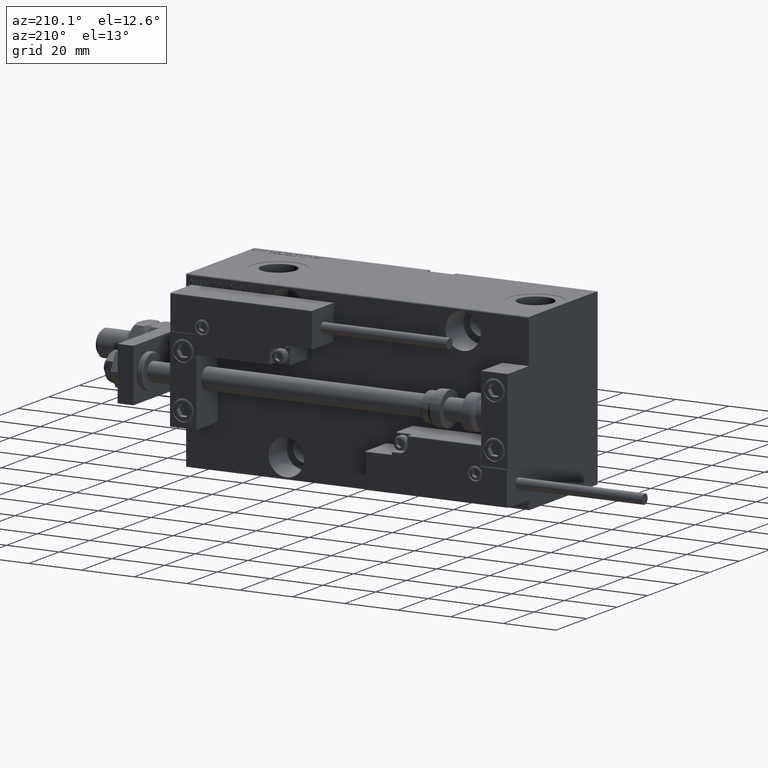
[diagram: clean part render]
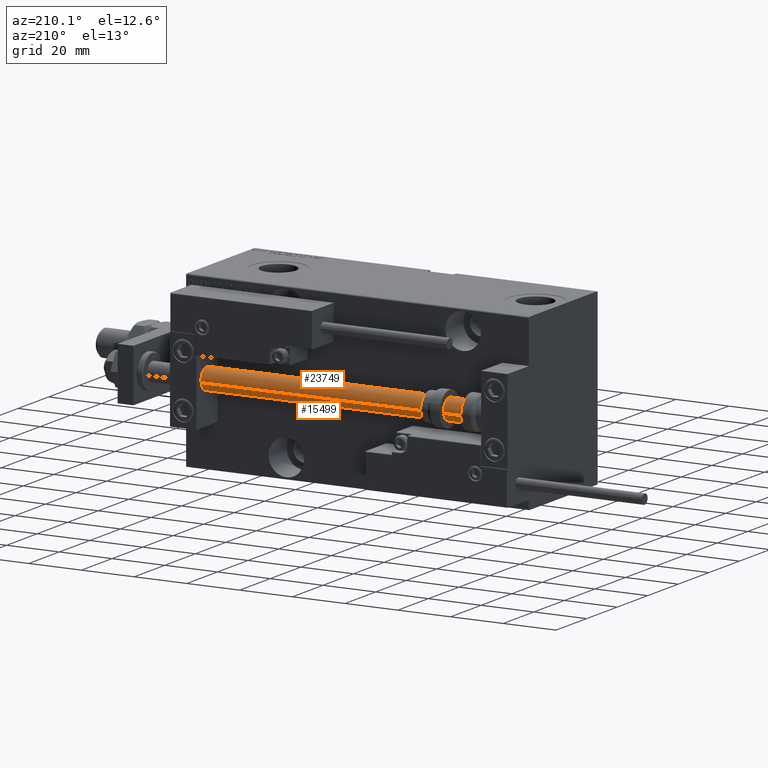
[diagram: same view with one multi-face feature highlighted, each face labeled with its STEP entity id]
A machine part, auxiliary view. The highlighted faces form ONE feature: a constant-radius fillet chain: 2 tangent blend faces with common blend radius 4 mm. The faces share edges in the B-rep.
Their STEP definitions:
[1] entity #23749 (Cylinder):
#70 = VECTOR ( 'NONE', #44994, 1000.000000000000000 ) ;
#1797 = CARTESIAN_POINT ( 'NONE',  ( -4.000000000000000000, 0.000000000000000000, 130.0000000000000000 ) ) ;
#2129 = CYLINDRICAL_SURFACE ( 'NONE', #6515, 4.000000000000000000 ) ;
#2512 = CARTESIAN_POINT ( 'NONE',  ( -4.000000000000000000, 0.000000000000000000, 130.0000000000000000 ) ) ;
#3029 = DIRECTION ( 'NONE',  ( -0.000000000000000000, -0.000000000000000000, 1.000000000000000000 ) ) ;
#6117 = CARTESIAN_POINT ( 'NONE',  ( -4.000000000000000000, 0.000000000000000000, 2.000000000000029310 ) ) ;
#6515 = AXIS2_PLACEMENT_3D ( 'NONE', #22571, #18110, #34068 ) ;
#6838 = EDGE_CURVE ( 'NONE', #8146, #43682, #15181, .T. ) ;
#8146 = VERTEX_POINT ( 'NONE', #2512 ) ;
#10108 = CARTESIAN_POINT ( 'NONE',  ( 0.000000000000000000, 0.000000000000000000, 2.000000000000029310 ) ) ;
#10424 = CARTESIAN_POINT ( 'NONE',  ( 4.000000000000000000, 4.898587196589412829E-16, 2.000000000000029310 ) ) ;
#12213 = EDGE_CURVE ( 'NONE', #43682, #29431, #51371, .T. ) ;
#14385 = VECTOR ( 'NONE', #23639, 1000.000000000000000 ) ;
#15181 = CIRCLE ( 'NONE', #26881, 4.000000000000000000 ) ;
#16016 = ORIENTED_EDGE ( 'NONE', *, *, #12213, .F. ) ;
#17690 = ORIENTED_EDGE ( 'NONE', *, *, #34741, .T. ) ;
#18110 = DIRECTION ( 'NONE',  ( -0.000000000000000000, -0.000000000000000000, -1.000000000000000000 ) ) ;
#18459 = ORIENTED_EDGE ( 'NONE', *, *, #35256, .T. ) ;
#20318 = EDGE_LOOP ( 'NONE', ( #16016, #34625, #17690, #18459 ) ) ;
#20515 = DIRECTION ( 'NONE',  ( 0.000000000000000000, 0.000000000000000000, 1.000000000000000000 ) ) ;
#22060 = FACE_OUTER_BOUND ( 'NONE', #20318, .T. ) ;
#22571 = CARTESIAN_POINT ( 'NONE',  ( 0.000000000000000000, 0.000000000000000000, 130.0000000000000000 ) ) ;
#23639 = DIRECTION ( 'NONE',  ( -0.000000000000000000, -0.000000000000000000, -1.000000000000000000 ) ) ;
#23749 = ADVANCED_FACE ( 'NONE', ( #22060 ), #2129, .T. ) ;
#24187 = CARTESIAN_POINT ( 'NONE',  ( 0.000000000000000000, 0.000000000000000000, 130.0000000000000000 ) ) ;
#26881 = AXIS2_PLACEMENT_3D ( 'NONE', #24187, #20515, #36986 ) ;
#28523 = CIRCLE ( 'NONE', #40244, 4.000000000000000000 ) ;
#29431 = VERTEX_POINT ( 'NONE', #10424 ) ;
#34068 = DIRECTION ( 'NONE',  ( -1.000000000000000000, 0.000000000000000000, 0.000000000000000000 ) ) ;
#34625 = ORIENTED_EDGE ( 'NONE', *, *, #6838, .F. ) ;
#34741 = EDGE_CURVE ( 'NONE', #8146, #46078, #40801, .T. ) ;
#35256 = EDGE_CURVE ( 'NONE', #46078, #29431, #28523, .T. ) ;
#36986 = DIRECTION ( 'NONE',  ( 1.000000000000000000, 0.000000000000000000, 0.000000000000000000 ) ) ;
#37852 = CARTESIAN_POINT ( 'NONE',  ( 4.000000000000000000, 4.898587196589412829E-16, 130.0000000000000000 ) ) ;
#38113 = DIRECTION ( 'NONE',  ( 1.000000000000000000, 0.000000000000000000, 0.000000000000000000 ) ) ;
#40244 = AXIS2_PLACEMENT_3D ( 'NONE', #10108, #3029, #38113 ) ;
#40801 = LINE ( 'NONE', #1797, #70 ) ;
#43682 = VERTEX_POINT ( 'NONE', #46054 ) ;
#44994 = DIRECTION ( 'NONE',  ( -0.000000000000000000, -0.000000000000000000, -1.000000000000000000 ) ) ;
#46054 = CARTESIAN_POINT ( 'NONE',  ( 4.000000000000000000, 4.898587196589412829E-16, 130.0000000000000000 ) ) ;
#46078 = VERTEX_POINT ( 'NONE', #6117 ) ;
#51371 = LINE ( 'NONE', #37852, #14385 ) ;
[2] entity #15499 (Cylinder):
#70 = VECTOR ( 'NONE', #44994, 1000.000000000000000 ) ;
#1699 = DIRECTION ( 'NONE',  ( -0.000000000000000000, -0.000000000000000000, 1.000000000000000000 ) ) ;
#1797 = CARTESIAN_POINT ( 'NONE',  ( -4.000000000000000000, 0.000000000000000000, 130.0000000000000000 ) ) ;
#2315 = CIRCLE ( 'NONE', #51646, 4.000000000000000000 ) ;
#2512 = CARTESIAN_POINT ( 'NONE',  ( -4.000000000000000000, 0.000000000000000000, 130.0000000000000000 ) ) ;
#3005 = EDGE_LOOP ( 'NONE', ( #43293, #7694, #4748, #11423 ) ) ;
#4748 = ORIENTED_EDGE ( 'NONE', *, *, #6586, .T. ) ;
#6117 = CARTESIAN_POINT ( 'NONE',  ( -4.000000000000000000, 0.000000000000000000, 2.000000000000029310 ) ) ;
#6586 = EDGE_CURVE ( 'NONE', #29431, #46078, #16771, .T. ) ;
#7694 = ORIENTED_EDGE ( 'NONE', *, *, #12213, .T. ) ;
#7753 = DIRECTION ( 'NONE',  ( -1.000000000000000000, 0.000000000000000000, 0.000000000000000000 ) ) ;
#8146 = VERTEX_POINT ( 'NONE', #2512 ) ;
#10424 = CARTESIAN_POINT ( 'NONE',  ( 4.000000000000000000, 4.898587196589412829E-16, 2.000000000000029310 ) ) ;
#11423 = ORIENTED_EDGE ( 'NONE', *, *, #34741, .F. ) ;
#12213 = EDGE_CURVE ( 'NONE', #43682, #29431, #51371, .T. ) ;
#14385 = VECTOR ( 'NONE', #23639, 1000.000000000000000 ) ;
#14526 = DIRECTION ( 'NONE',  ( 1.000000000000000000, 0.000000000000000000, 0.000000000000000000 ) ) ;
#15499 = ADVANCED_FACE ( 'NONE', ( #20566 ), #32351, .T. ) ;
#16771 = CIRCLE ( 'NONE', #43524, 4.000000000000000000 ) ;
#20316 = DIRECTION ( 'NONE',  ( -0.000000000000000000, -0.000000000000000000, -1.000000000000000000 ) ) ;
#20566 = FACE_OUTER_BOUND ( 'NONE', #3005, .T. ) ;
#23639 = DIRECTION ( 'NONE',  ( -0.000000000000000000, -0.000000000000000000, -1.000000000000000000 ) ) ;
#24763 = EDGE_CURVE ( 'NONE', #43682, #8146, #2315, .T. ) ;
#26178 = DIRECTION ( 'NONE',  ( 1.000000000000000000, 0.000000000000000000, 0.000000000000000000 ) ) ;
#26197 = AXIS2_PLACEMENT_3D ( 'NONE', #27906, #20316, #7753 ) ;
#27906 = CARTESIAN_POINT ( 'NONE',  ( 0.000000000000000000, 0.000000000000000000, 130.0000000000000000 ) ) ;
#29431 = VERTEX_POINT ( 'NONE', #10424 ) ;
#32351 = CYLINDRICAL_SURFACE ( 'NONE', #26197, 4.000000000000000000 ) ;
#34741 = EDGE_CURVE ( 'NONE', #8146, #46078, #40801, .T. ) ;
#37852 = CARTESIAN_POINT ( 'NONE',  ( 4.000000000000000000, 4.898587196589412829E-16, 130.0000000000000000 ) ) ;
#40801 = LINE ( 'NONE', #1797, #70 ) ;
#42140 = DIRECTION ( 'NONE',  ( 0.000000000000000000, 0.000000000000000000, 1.000000000000000000 ) ) ;
#43293 = ORIENTED_EDGE ( 'NONE', *, *, #24763, .F. ) ;
#43524 = AXIS2_PLACEMENT_3D ( 'NONE', #49868, #1699, #14526 ) ;
#43682 = VERTEX_POINT ( 'NONE', #46054 ) ;
#44994 = DIRECTION ( 'NONE',  ( -0.000000000000000000, -0.000000000000000000, -1.000000000000000000 ) ) ;
#46054 = CARTESIAN_POINT ( 'NONE',  ( 4.000000000000000000, 4.898587196589412829E-16, 130.0000000000000000 ) ) ;
#46063 = CARTESIAN_POINT ( 'NONE',  ( 0.000000000000000000, 0.000000000000000000, 130.0000000000000000 ) ) ;
#46078 = VERTEX_POINT ( 'NONE', #6117 ) ;
#49868 = CARTESIAN_POINT ( 'NONE',  ( 0.000000000000000000, 0.000000000000000000, 2.000000000000029310 ) ) ;
#51371 = LINE ( 'NONE', #37852, #14385 ) ;
#51646 = AXIS2_PLACEMENT_3D ( 'NONE', #46063, #42140, #26178 ) ;